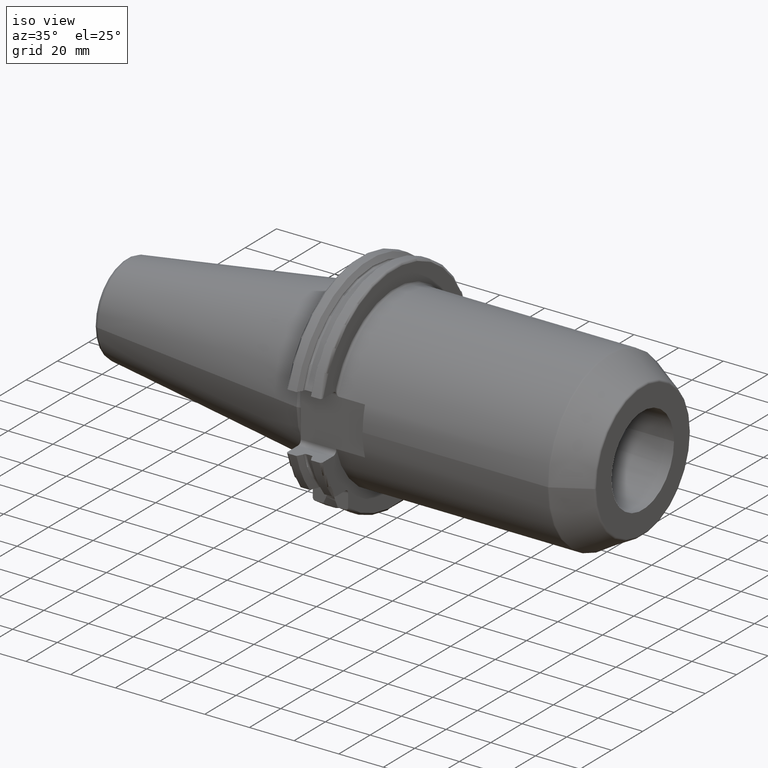
[diagram: clean part render]
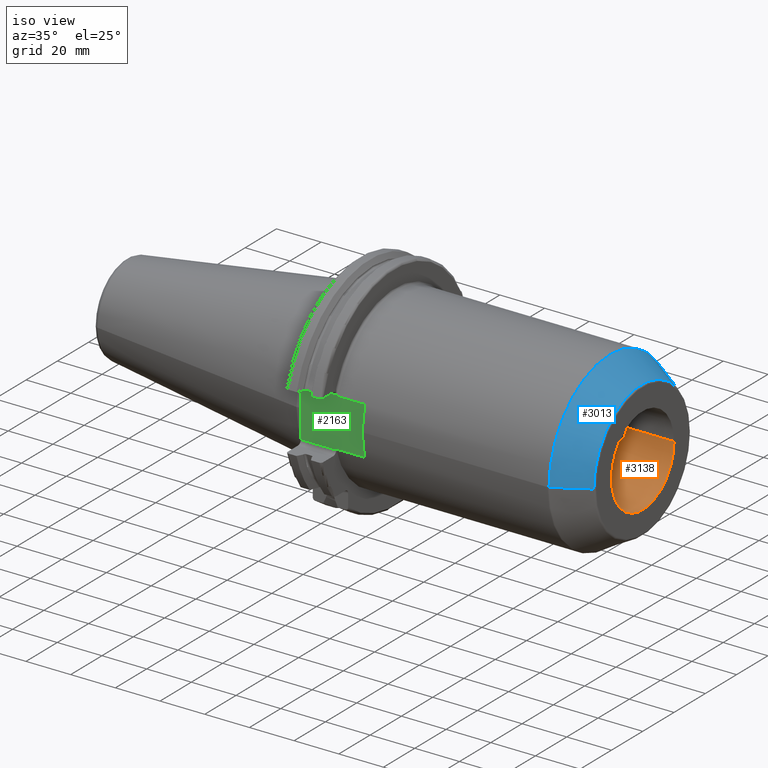
[diagram: same view with three faces highlighted in distinct colors, each labeled with its STEP entity id]
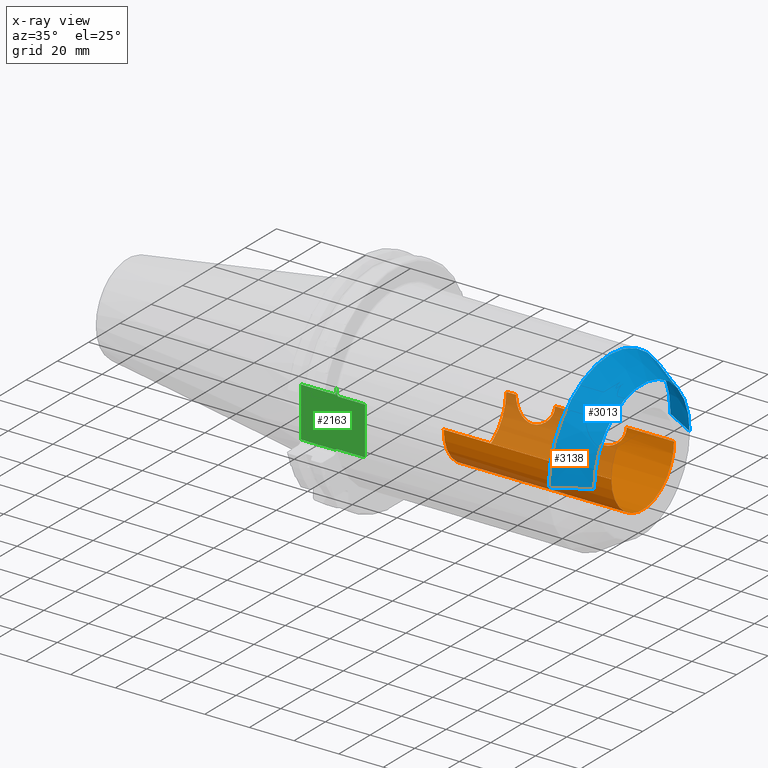
[diagram: x-ray of the same camera — body ghosted, the three highlighted faces saturated]
A machine part, iso view with three faces highlighted in distinct colors.
The next image is the same camera in x-ray (body ghosted, the three faces saturated) — at least one of them is partly hidden behind the body in this view.
Their STEP definitions:

[orange] entity #3138 — the highlighted cylindrical surface (partial cylindrical patch) has radius 20 mm, axis along (1, 0, 0).
#1223=CARTESIAN_POINT('',(1.3E2,0.E0,0.E0));
#1224=DIRECTION('',(1.E0,0.E0,0.E0));
#1225=DIRECTION('',(0.E0,-1.E0,0.E0));
#1226=AXIS2_PLACEMENT_3D('',#1223,#1224,#1225);
#1238=CARTESIAN_POINT('',(5.925E1,2.E1,0.E0));
#1262=CARTESIAN_POINT('',(7.675E1,2.E1,0.E0));
#1298=CARTESIAN_POINT('',(7.675E1,2.E1,0.E0));
#1299=CARTESIAN_POINT('',(7.675E1,2.E1,-4.026816583213E-1));
#1300=CARTESIAN_POINT('',(7.669518120309E1,1.997591470412E1,-1.206592275968E0));
#1301=CARTESIAN_POINT('',(7.643939015094E1,1.986531764861E1,-2.419107707505E0));
#1302=CARTESIAN_POINT('',(7.601359115273E1,1.968712272626E1,-3.587610522618E0));
#1303=CARTESIAN_POINT('',(7.541174090775E1,1.944840604254E1,-4.708659732813E0));
#1304=CARTESIAN_POINT('',(7.464751353929E1,1.916810615632E1,-5.738806660587E0));
#1305=CARTESIAN_POINT('',(7.372199877384E1,1.886495017897E1,-6.662054297387E0));
#1306=CARTESIAN_POINT('',(7.268798640016E1,1.857543942287E1,-7.425064610559E0));
#1307=CARTESIAN_POINT('',(7.156144994689E1,1.832200606398E1,-8.025373224443E0));
#1308=CARTESIAN_POINT('',(7.039547723615E1,1.813057015124E1,-8.445439758764E0));
#1309=CARTESIAN_POINT('',(6.920022601986E1,1.801106886356E1,-8.695457494794E0));
#1310=CARTESIAN_POINT('',(6.799913922568E1,1.797100737031E1,-8.777292409435E0));
#1311=CARTESIAN_POINT('',(6.679926688372E1,1.801111100205E1,-8.695372718855E0));
#1312=CARTESIAN_POINT('',(6.560320598128E1,1.813073883113E1,-8.445077563520E0));
#1313=CARTESIAN_POINT('',(6.443795328914E1,1.832212887788E1,-8.025096878562E0));
#1314=CARTESIAN_POINT('',(6.331091623539E1,1.857571060348E1,-7.424397195334E0));
#1315=CARTESIAN_POINT('',(6.227729384303E1,1.886517451530E1,-6.661403695537E0));
#1316=CARTESIAN_POINT('',(6.135200472247E1,1.916827052149E1,-5.738286282503E0));
#1317=CARTESIAN_POINT('',(6.058748301257E1,1.944870247619E1,-4.707444737188E0));
#1318=CARTESIAN_POINT('',(5.998608107889E1,1.968725931571E1,-3.586831999656E0));
#1319=CARTESIAN_POINT('',(5.956041160480E1,1.986540220954E1,-2.418338664946E0));
#1320=CARTESIAN_POINT('',(5.930486274882E1,1.997589605234E1,-1.206691124380E0));
#1321=CARTESIAN_POINT('',(5.925E1,2.E1,-4.027512374837E-1));
#1322=CARTESIAN_POINT('',(5.925E1,2.E1,0.E0));
#1324=DIRECTION('',(-1.E0,0.E0,0.E0));
#1325=VECTOR('',#1324,1.45E1);
#1326=CARTESIAN_POINT('',(9.125E1,2.E1,0.E0));
#1327=LINE('',#1326,#1325);
#1328=CARTESIAN_POINT('',(1.0875E2,2.E1,0.E0));
#1329=CARTESIAN_POINT('',(1.0875E2,2.E1,-4.026816583213E-1));
#1330=CARTESIAN_POINT('',(1.086951812031E2,1.997591470412E1,-1.206592275968E0));
#1331=CARTESIAN_POINT('',(1.084393901509E2,1.986531764861E1,-2.419107707505E0));
#1332=CARTESIAN_POINT('',(1.080135911527E2,1.968712272626E1,-3.587610522619E0));
#1333=CARTESIAN_POINT('',(1.074117409078E2,1.944840604254E1,-4.708659732813E0));
#1334=CARTESIAN_POINT('',(1.066475135393E2,1.916810615632E1,-5.738806660587E0));
#1335=CARTESIAN_POINT('',(1.057219987738E2,1.886495017897E1,-6.662054297387E0));
#1336=CARTESIAN_POINT('',(1.046879864002E2,1.857543942287E1,-7.425064610559E0));
#1337=CARTESIAN_POINT('',(1.035614499469E2,1.832200606398E1,-8.025373224443E0));
#1338=CARTESIAN_POINT('',(1.023954772362E2,1.813057015124E1,-8.445439758764E0));
#1339=CARTESIAN_POINT('',(1.012002260199E2,1.801106886356E1,-8.695457494794E0));
#1340=CARTESIAN_POINT('',(9.999913922568E1,1.797100737031E1,-8.777292409435E0));
#1341=CARTESIAN_POINT('',(9.879926688372E1,1.801111100205E1,-8.695372718855E0));
#1342=CARTESIAN_POINT('',(9.760320598128E1,1.813073883113E1,-8.445077563520E0));
#1343=CARTESIAN_POINT('',(9.643795328914E1,1.832212887788E1,-8.025096878562E0));
#1344=CARTESIAN_POINT('',(9.531091623539E1,1.857571060348E1,-7.424397195334E0));
#1345=CARTESIAN_POINT('',(9.427729384303E1,1.886517451530E1,-6.661403695537E0));
#1346=CARTESIAN_POINT('',(9.335200472247E1,1.916827052149E1,-5.738286282503E0));
#1347=CARTESIAN_POINT('',(9.258748301257E1,1.944870247619E1,-4.707444737188E0));
#1348=CARTESIAN_POINT('',(9.198608107889E1,1.968725931571E1,-3.586831999656E0));
#1349=CARTESIAN_POINT('',(9.156041160480E1,1.986540220954E1,-2.418338664946E0));
#1350=CARTESIAN_POINT('',(9.130486274882E1,1.997589605234E1,-1.206691124380E0));
#1351=CARTESIAN_POINT('',(9.125E1,2.E1,-4.027512374837E-1));
#1352=CARTESIAN_POINT('',(9.125E1,2.E1,0.E0));
#1354=DIRECTION('',(-1.E0,0.E0,0.E0));
#1355=VECTOR('',#1354,2.125E1);
#1356=CARTESIAN_POINT('',(1.3E2,2.E1,0.E0));
#1357=LINE('',#1356,#1355);
#1358=DIRECTION('',(-1.E0,0.E0,0.E0));
#1359=VECTOR('',#1358,7.51E1);
#1360=CARTESIAN_POINT('',(1.3E2,-2.E1,0.E0));
#1361=LINE('',#1360,#1359);
#1362=DIRECTION('',(-1.E0,0.E0,0.E0));
#1363=VECTOR('',#1362,4.35E0);
#1364=CARTESIAN_POINT('',(5.925E1,2.E1,0.E0));
#1365=LINE('',#1364,#1363);
#1374=CARTESIAN_POINT('',(5.49E1,0.E0,0.E0));
#1375=DIRECTION('',(-1.E0,0.E0,0.E0));
#1376=DIRECTION('',(0.E0,1.E0,0.E0));
#1377=AXIS2_PLACEMENT_3D('',#1374,#1375,#1376);
#1795=CARTESIAN_POINT('',(5.49E1,2.E1,0.E0));
#1796=CARTESIAN_POINT('',(5.49E1,-2.E1,0.E0));
#1797=VERTEX_POINT('',#1795);
#1798=VERTEX_POINT('',#1796);
#1799=CARTESIAN_POINT('',(1.3E2,-2.E1,0.E0));
#1800=VERTEX_POINT('',#1799);
#1801=CARTESIAN_POINT('',(1.0875E2,2.E1,0.E0));
#1803=VERTEX_POINT('',#1801);
#1805=CARTESIAN_POINT('',(9.125E1,2.E1,0.E0));
#1807=VERTEX_POINT('',#1805);
#1809=CARTESIAN_POINT('',(1.3E2,2.E1,0.E0));
#1810=VERTEX_POINT('',#1809);
#1829=VERTEX_POINT('',#1238);
#1830=VERTEX_POINT('',#1262);
#3121=CARTESIAN_POINT('',(5.1145E1,0.E0,0.E0));
#3122=DIRECTION('',(1.E0,0.E0,0.E0));
#3123=DIRECTION('',(0.E0,-1.E0,0.E0));
#3124=AXIS2_PLACEMENT_3D('',#3121,#3122,#3123);
#3125=CYLINDRICAL_SURFACE('',#3124,2.E1);
#3126=ORIENTED_EDGE('',*,*,#3115,.F.);
#3127=ORIENTED_EDGE('',*,*,#3089,.F.);
#3129=ORIENTED_EDGE('',*,*,#3128,.F.);
#3130=ORIENTED_EDGE('',*,*,#3085,.F.);
#3131=ORIENTED_EDGE('',*,*,#3066,.F.);
#3132=ORIENTED_EDGE('',*,*,#3082,.T.);
#3134=ORIENTED_EDGE('',*,*,#3133,.F.);
#3135=ORIENTED_EDGE('',*,*,#3078,.F.);
#3136=EDGE_LOOP('',(#3126,#3127,#3129,#3130,#3131,#3132,#3134,#3135));
#3137=FACE_OUTER_BOUND('',#3136,.F.);
#3138=ADVANCED_FACE('',(#3137),#3125,.F.);
#1227=CIRCLE('',#1226,2.E1);
#1323=B_SPLINE_CURVE_WITH_KNOTS('',3,(#1298,#1299,#1300,#1301,#1302,#1303,#1304,
#1305,#1306,#1307,#1308,#1309,#1310,#1311,#1312,#1313,#1314,#1315,#1316,#1317,
#1318,#1319,#1320,#1321,#1322),.UNSPECIFIED.,.F.,.F.,(4,1,1,1,1,1,1,1,1,1,1,1,1,
1,1,1,1,1,1,1,1,1,4),(0.E0,4.545454545455E-2,9.090909090909E-2,
1.363636363636E-1,1.818181818182E-1,2.272727272727E-1,2.727272727273E-1,
3.181818181818E-1,3.636363636364E-1,4.090909090909E-1,4.545454545455E-1,5.E-1,
5.454545454545E-1,5.909090909091E-1,6.363636363636E-1,6.818181818182E-1,
7.272727272727E-1,7.727272727273E-1,8.181818181818E-1,8.636363636364E-1,
9.090909090909E-1,9.545454545455E-1,1.E0),.UNSPECIFIED.);
#1353=B_SPLINE_CURVE_WITH_KNOTS('',3,(#1328,#1329,#1330,#1331,#1332,#1333,#1334,
#1335,#1336,#1337,#1338,#1339,#1340,#1341,#1342,#1343,#1344,#1345,#1346,#1347,
#1348,#1349,#1350,#1351,#1352),.UNSPECIFIED.,.F.,.F.,(4,1,1,1,1,1,1,1,1,1,1,1,1,
1,1,1,1,1,1,1,1,1,4),(0.E0,4.545454545455E-2,9.090909090909E-2,
1.363636363636E-1,1.818181818182E-1,2.272727272727E-1,2.727272727273E-1,
3.181818181818E-1,3.636363636364E-1,4.090909090909E-1,4.545454545455E-1,5.E-1,
5.454545454545E-1,5.909090909091E-1,6.363636363636E-1,6.818181818182E-1,
7.272727272727E-1,7.727272727273E-1,8.181818181818E-1,8.636363636364E-1,
9.090909090909E-1,9.545454545455E-1,1.E0),.UNSPECIFIED.);
#1378=CIRCLE('',#1377,2.E1);
#3066=EDGE_CURVE('',#1800,#1810,#1227,.T.);
#3078=EDGE_CURVE('',#1829,#1797,#1365,.T.);
#3082=EDGE_CURVE('',#1800,#1798,#1361,.T.);
#3085=EDGE_CURVE('',#1810,#1803,#1357,.T.);
#3089=EDGE_CURVE('',#1807,#1830,#1327,.T.);
#3115=EDGE_CURVE('',#1830,#1829,#1323,.T.);
#3128=EDGE_CURVE('',#1803,#1807,#1353,.T.);
#3133=EDGE_CURVE('',#1797,#1798,#1378,.T.);

[blue] entity #3013 — the highlighted conical surface has half-angle 30 deg.
#1180=CARTESIAN_POINT('',(1.152320508076E2,0.E0,0.E0));
#1181=DIRECTION('',(-1.E0,0.E0,0.E0));
#1182=DIRECTION('',(0.E0,-1.E0,0.E0));
#1183=AXIS2_PLACEMENT_3D('',#1180,#1181,#1182);
#1185=CARTESIAN_POINT('',(1.295E2,0.E0,0.E0));
#1186=DIRECTION('',(-1.E0,0.E0,0.E0));
#1187=DIRECTION('',(0.E0,-1.E0,0.E0));
#1188=AXIS2_PLACEMENT_3D('',#1185,#1186,#1187);
#1195=DIRECTION('',(-8.660254037844E-1,-5.E-1,1.231181988612E-13));
#1196=VECTOR('',#1195,1.647520861407E1);
#1197=CARTESIAN_POINT('',(1.295E2,-3.062842109675E1,5.136833928979E-13));
#1198=LINE('',#1197,#1196);
#1204=DIRECTION('',(-8.660254037844E-1,5.E-1,-1.228496371269E-13));
#1205=VECTOR('',#1204,1.647520861407E1);
#1206=CARTESIAN_POINT('',(1.295E2,3.062842109675E1,-5.214281727641E-13));
#1207=LINE('',#1206,#1205);
#1815=CARTESIAN_POINT('',(1.152320508076E2,3.886602540378E1,0.E0));
#1816=CARTESIAN_POINT('',(1.152320508076E2,-3.886602540378E1,0.E0));
#1817=VERTEX_POINT('',#1815);
#1818=VERTEX_POINT('',#1816);
#1819=CARTESIAN_POINT('',(1.295E2,3.062842109675E1,0.E0));
#1820=CARTESIAN_POINT('',(1.295E2,-3.062842109675E1,0.E0));
#1821=VERTEX_POINT('',#1819);
#1822=VERTEX_POINT('',#1820);
#2999=CARTESIAN_POINT('',(1.223660254038E2,0.E0,0.E0));
#3000=DIRECTION('',(-1.E0,0.E0,0.E0));
#3001=DIRECTION('',(0.E0,1.E0,0.E0));
#3002=AXIS2_PLACEMENT_3D('',#2999,#3000,#3001);
#3003=CONICAL_SURFACE('',#3002,3.474722325027E1,3.E1);
#3004=ORIENTED_EDGE('',*,*,#2993,.T.);
#3006=ORIENTED_EDGE('',*,*,#3005,.F.);
#3008=ORIENTED_EDGE('',*,*,#3007,.F.);
#3010=ORIENTED_EDGE('',*,*,#3009,.T.);
#3011=EDGE_LOOP('',(#3004,#3006,#3008,#3010));
#3012=FACE_OUTER_BOUND('',#3011,.F.);
#3013=ADVANCED_FACE('',(#3012),#3003,.T.);
#1184=CIRCLE('',#1183,3.886602540378E1);
#1189=CIRCLE('',#1188,3.062842109675E1);
#2993=EDGE_CURVE('',#1818,#1817,#1184,.T.);
#3005=EDGE_CURVE('',#1821,#1817,#1207,.T.);
#3007=EDGE_CURVE('',#1822,#1821,#1189,.T.);
#3009=EDGE_CURVE('',#1822,#1818,#1198,.T.);

[green] entity #2163 — the highlighted planar face has unit normal (0, 1, 0).
#160=DIRECTION('',(0.E0,0.E0,1.E0));
#161=VECTOR('',#160,4.378573571857E-1);
#162=CARTESIAN_POINT('',(1.905E1,-3.75E1,-1.115E1));
#163=LINE('',#162,#161);
#216=DIRECTION('',(0.E0,0.E0,-1.E0));
#217=VECTOR('',#216,2.769410907075E0);
#218=CARTESIAN_POINT('',(1.905E1,-3.75E1,1.391941090708E1));
#219=LINE('',#218,#217);
#220=CARTESIAN_POINT('',(1.905E1,-3.75E1,1.391941090708E1));
#221=CARTESIAN_POINT('',(1.905E1,-3.75E1,1.377393691190E1));
#222=CARTESIAN_POINT('',(1.905763420881E1,-3.75E1,1.349568148067E1));
#223=CARTESIAN_POINT('',(1.908513451570E1,-3.75E1,1.311819873192E1));
#224=CARTESIAN_POINT('',(1.912435729416E1,-3.75E1,1.277508908402E1));
#225=CARTESIAN_POINT('',(1.917240370216E1,-3.75E1,1.246365108670E1));
#226=CARTESIAN_POINT('',(1.922732349640E1,-3.75E1,1.218107027839E1));
#227=CARTESIAN_POINT('',(1.928781287246E1,-3.75E1,1.192513252184E1));
#228=CARTESIAN_POINT('',(1.935305194869E1,-3.75E1,1.169396486391E1));
#229=CARTESIAN_POINT('',(1.942261120921E1,-3.75E1,1.148608666004E1));
#230=CARTESIAN_POINT('',(1.949641352890E1,-3.75E1,1.130041900183E1));
#231=CARTESIAN_POINT('',(1.957472557753E1,-3.75E1,1.113642050328E1));
#232=CARTESIAN_POINT('',(1.965818669792E1,-3.75E1,1.099424302474E1));
#233=CARTESIAN_POINT('',(1.974780225923E1,-3.75E1,1.087537371475E1));
#234=CARTESIAN_POINT('',(1.984442235044E1,-3.75E1,1.078310820763E1));
#235=CARTESIAN_POINT('',(1.994870927352E1,-3.75E1,1.072426699795E1));
#236=CARTESIAN_POINT('',(2.001618017837E1,-3.75E1,1.071214264281E1));
#237=CARTESIAN_POINT('',(2.005E1,-3.75E1,1.071214264281E1));
#239=DIRECTION('',(0.E0,0.E0,1.E0));
#240=VECTOR('',#239,2.142428528563E1);
#241=CARTESIAN_POINT('',(3.195E1,-3.75E1,-1.071214264281E1));
#242=LINE('',#241,#240);
#243=DIRECTION('',(-1.E0,0.E0,0.E0));
#244=VECTOR('',#243,1.585E1);
#245=CARTESIAN_POINT('',(1.905E1,-3.75E1,-1.115E1));
#246=LINE('',#245,#244);
#247=DIRECTION('',(-1.E0,0.E0,0.E0));
#248=VECTOR('',#247,1.585E1);
#249=CARTESIAN_POINT('',(1.905E1,-3.75E1,1.115E1));
#250=LINE('',#249,#248);
#260=DIRECTION('',(0.E0,0.E0,1.E0));
#261=VECTOR('',#260,2.23E1);
#262=CARTESIAN_POINT('',(3.2E0,-3.75E1,-1.115E1));
#263=LINE('',#262,#261);
#1008=DIRECTION('',(1.E0,0.E0,0.E0));
#1009=VECTOR('',#1008,1.19E1);
#1010=CARTESIAN_POINT('',(2.005E1,-3.75E1,1.071214264281E1));
#1011=LINE('',#1010,#1009);
#1081=DIRECTION('',(1.E0,0.E0,0.E0));
#1082=VECTOR('',#1081,1.29E1);
#1083=CARTESIAN_POINT('',(1.905E1,-3.75E1,-1.071214264281E1));
#1084=LINE('',#1083,#1082);
#1763=CARTESIAN_POINT('',(1.905E1,-3.75E1,-1.115E1));
#1764=CARTESIAN_POINT('',(3.2E0,-3.75E1,-1.115E1));
#1765=VERTEX_POINT('',#1763);
#1766=VERTEX_POINT('',#1764);
#1785=CARTESIAN_POINT('',(3.2E0,-3.75E1,1.115E1));
#1786=VERTEX_POINT('',#1785);
#1867=CARTESIAN_POINT('',(2.005E1,-3.75E1,1.071214264281E1));
#1868=CARTESIAN_POINT('',(3.195E1,-3.75E1,1.071214264281E1));
#1869=VERTEX_POINT('',#1867);
#1870=VERTEX_POINT('',#1868);
#1873=CARTESIAN_POINT('',(1.905E1,-3.75E1,-1.071214264281E1));
#1874=CARTESIAN_POINT('',(3.195E1,-3.75E1,-1.071214264281E1));
#1875=VERTEX_POINT('',#1873);
#1876=VERTEX_POINT('',#1874);
#1877=CARTESIAN_POINT('',(1.905E1,-3.75E1,1.115E1));
#1878=VERTEX_POINT('',#1877);
#1879=CARTESIAN_POINT('',(1.905E1,-3.75E1,1.391941090708E1));
#1880=VERTEX_POINT('',#1879);
#2141=CARTESIAN_POINT('',(1.905E1,-3.75E1,-1.29E1));
#2142=DIRECTION('',(0.E0,1.E0,0.E0));
#2143=DIRECTION('',(0.E0,0.E0,1.E0));
#2144=AXIS2_PLACEMENT_3D('',#2141,#2142,#2143);
#2145=PLANE('',#2144);
#2147=ORIENTED_EDGE('',*,*,#2146,.F.);
#2148=ORIENTED_EDGE('',*,*,#2081,.F.);
#2149=ORIENTED_EDGE('',*,*,#2132,.T.);
#2151=ORIENTED_EDGE('',*,*,#2150,.T.);
#2153=ORIENTED_EDGE('',*,*,#2152,.F.);
#2155=ORIENTED_EDGE('',*,*,#2154,.F.);
#2156=ORIENTED_EDGE('',*,*,#2102,.F.);
#2158=ORIENTED_EDGE('',*,*,#2157,.T.);
#2160=ORIENTED_EDGE('',*,*,#2159,.T.);
#2161=EDGE_LOOP('',(#2147,#2148,#2149,#2151,#2153,#2155,#2156,#2158,#2160));
#2162=FACE_OUTER_BOUND('',#2161,.F.);
#2163=ADVANCED_FACE('',(#2162),#2145,.F.);
#238=B_SPLINE_CURVE_WITH_KNOTS('',3,(#220,#221,#222,#223,#224,#225,#226,#227,
#228,#229,#230,#231,#232,#233,#234,#235,#236,#237),.UNSPECIFIED.,.F.,.F.,(4,1,1,
1,1,1,1,1,1,1,1,1,1,1,1,4),(0.E0,6.666666666667E-2,1.333333333333E-1,2.E-1,
2.666666666667E-1,3.333333333333E-1,4.E-1,4.666666666667E-1,5.333333333333E-1,
6.E-1,6.666666666667E-1,7.333333333333E-1,8.E-1,8.666666666667E-1,
9.333333333333E-1,1.E0),.UNSPECIFIED.);
#2081=EDGE_CURVE('',#1880,#1878,#219,.T.);
#2102=EDGE_CURVE('',#1765,#1875,#163,.T.);
#2132=EDGE_CURVE('',#1880,#1869,#238,.T.);
#2146=EDGE_CURVE('',#1878,#1786,#250,.T.);
#2150=EDGE_CURVE('',#1869,#1870,#1011,.T.);
#2152=EDGE_CURVE('',#1876,#1870,#242,.T.);
#2154=EDGE_CURVE('',#1875,#1876,#1084,.T.);
#2157=EDGE_CURVE('',#1765,#1766,#246,.T.);
#2159=EDGE_CURVE('',#1766,#1786,#263,.T.);